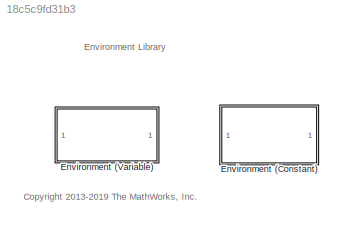
MODEL slx_18c5c9fd31b3
KIND library
CONFIG AbsTol = auto
CONFIG EnableMultiTasking = on
CONFIG FixedStep = auto
CONFIG MaxStep = auto
CONFIG MinStep = auto
CONFIG RelTol = 1e-3
CONFIG SampleTimeConstraint = Unconstrained
CONFIG SolverName = ode45
CONFIG StartTime = 0.0
CONFIG StopTime = 10.0
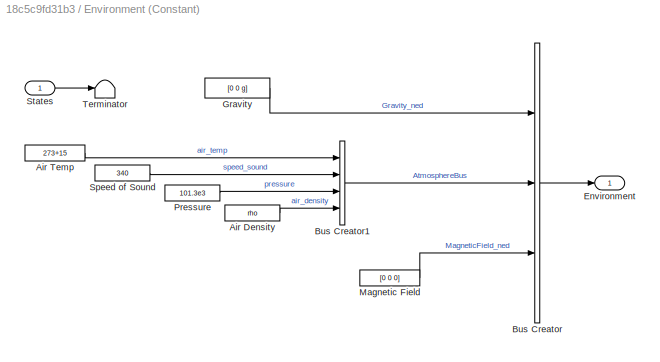
BLOCK [SubSystem] Environment (Constant)
  Ports = [1, 1]
  RequestExecContextInheritance = off
  TreatAsAtomicUnit = on
BLOCK [Constant] Environment (Constant)/Air Density
  Value = rho
BLOCK [Constant] Environment (Constant)/Air Temp
  Value = 273+15
BLOCK [BusCreator] Environment (Constant)/Bus Creator
  DisplayOption = bar
  InheritFromInputs = on
  Inputs = 3
  NonVirtualBus = on
  OutDataTypeStr = Bus: EnvironmentBus
  Ports = [3, 1]
BLOCK [BusCreator] Environment (Constant)/Bus Creator1
  DisplayOption = bar
  InheritFromInputs = on
  Inputs = 4
  NonVirtualBus = on
  OutDataTypeStr = Bus: AtmosphereBus
  Ports = [4, 1]
BLOCK [Outport] Environment (Constant)/Environment
  VectorParamsAs1DForOutWhenUnconnected = off
BLOCK [Constant] Environment (Constant)/Gravity
  Value = [0 0 g]
BLOCK [Constant] Environment (Constant)/Magnetic Field
  Value = [0 0 0]
BLOCK [Constant] Environment (Constant)/Pressure
  Value = 101.3e3
BLOCK [Constant] Environment (Constant)/Speed of Sound
  Value = 340
BLOCK [Inport] Environment (Constant)/States
  OutDataTypeStr = Bus: StatesBus
BLOCK [Terminator] Environment (Constant)/Terminator
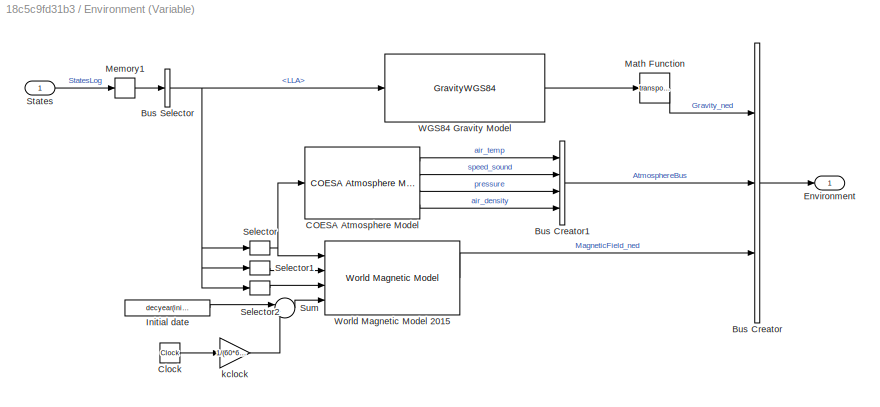
BLOCK [SubSystem] Environment (Variable)
  Ports = [1, 1]
  RequestExecContextInheritance = off
  TreatAsAtomicUnit = on
  VariantControl = VSS_ENVIRONMENT_VARIABLE
BLOCK [BusCreator] Environment (Variable)/Bus Creator
  DisplayOption = bar
  InheritFromInputs = on
  Inputs = 3
  NonVirtualBus = on
  OutDataTypeStr = Bus: EnvironmentBus
  Ports = [3, 1]
BLOCK [BusCreator] Environment (Variable)/Bus Creator1
  DisplayOption = bar
  InheritFromInputs = on
  Inputs = 4
  NonVirtualBus = on
  OutDataTypeStr = Bus: AtmosphereBus
  Ports = [4, 1]
BLOCK [BusSelector] Environment (Variable)/Bus Selector
  OutputSignals = LLA
  Ports = [1, 1]
BLOCK [Reference] Environment (Variable)/COESA Atmosphere Model  REF=aerolibatmos2/COESA Atmosphere Model
  Ports = [1, 4]
  SourceBlock = aerolibatmos2/COESA Atmosphere Model
  SourceProductBaseCode = AE
  SourceType = Atmosphere Model
BLOCK [Clock] Environment (Variable)/Clock
BLOCK [Outport] Environment (Variable)/Environment
  VectorParamsAs1DForOutWhenUnconnected = off
BLOCK [Constant] Environment (Variable)/Initial date
  Value = decyear(init.date)
BLOCK [Math] Environment (Variable)/Math Function
  Operator = transpose
  Ports = [1, 1]
  SignedPower = on
BLOCK [Memory] Environment (Variable)/Memory1
  InheritSampleTime = on
  InitialCondition = States
BLOCK [Selector] Environment (Variable)/Selector
  IndexOptions = Index vector (dialog)
  Indices = [3]
  InputPortWidth = 3
  OutputSizes = 1
  Ports = [1, 1]
BLOCK [Selector] Environment (Variable)/Selector1
  IndexOptions = Index vector (dialog)
  Indices = [1]
  InputPortWidth = 3
  OutputSizes = 1
  Ports = [1, 1]
BLOCK [Selector] Environment (Variable)/Selector2
  IndexOptions = Index vector (dialog)
  Indices = [2]
  InputPortWidth = 3
  OutputSizes = 1
  Ports = [1, 1]
BLOCK [Inport] Environment (Variable)/States
  OutDataTypeStr = Bus: StatesBus
BLOCK [Sum] Environment (Variable)/Sum
  Inputs = |++
  Ports = [2, 1]
BLOCK [GravityWGS84] Environment (Variable)/WGS84 Gravity Model  
  Ports = [1, 1]
  action = None
BLOCK [Reference] Environment (Variable)/World Magnetic Model 2015  REF=aerolibgravity2/World Magnetic Model
  Ports = [4, 1]
  SourceBlock = aerolibgravity2/World Magnetic Model
  SourceProductBaseCode = AE
  SourceType = WorldMagneticModel
BLOCK [Gain] Environment (Variable)/kclock
  Gain = 1/(60*60*24*(365 + leapyear(init.date(1))))
ANNOTATION (root): <copyright redacted>
ANNOTATION (root): Environment Library
LINE Environment (Constant)/Air Density:1 -> Environment (Constant)/Bus Creator1:4
LINE Environment (Constant)/Air Temp:1 -> Environment (Constant)/Bus Creator1:1
LINE Environment (Constant)/Bus Creator1:1 -> Environment (Constant)/Bus Creator:2
LINE Environment (Constant)/Bus Creator:1 -> Environment (Constant)/Environment:1
LINE Environment (Constant)/Gravity:1 -> Environment (Constant)/Bus Creator:1
LINE Environment (Constant)/Magnetic Field:1 -> Environment (Constant)/Bus Creator:3
LINE Environment (Constant)/Pressure:1 -> Environment (Constant)/Bus Creator1:3
LINE Environment (Constant)/Speed of Sound:1 -> Environment (Constant)/Bus Creator1:2
LINE Environment (Constant)/States:1 -> Environment (Constant)/Terminator:1
LINE Environment (Variable)/Bus Creator1:1 -> Environment (Variable)/Bus Creator:2
LINE Environment (Variable)/Bus Creator:1 -> Environment (Variable)/Environment:1
NET Environment (Variable)/Bus Selector:1 -> Environment (Variable)/Selector1:1, Environment (Variable)/Selector2:1, Environment (Variable)/Selector:1, Environment (Variable)/WGS84 Gravity Model  :1
LINE Environment (Variable)/COESA Atmosphere Model:1 -> Environment (Variable)/Bus Creator1:1
LINE Environment (Variable)/COESA Atmosphere Model:2 -> Environment (Variable)/Bus Creator1:2
LINE Environment (Variable)/COESA Atmosphere Model:3 -> Environment (Variable)/Bus Creator1:3
LINE Environment (Variable)/COESA Atmosphere Model:4 -> Environment (Variable)/Bus Creator1:4
LINE Environment (Variable)/Clock:1 -> Environment (Variable)/kclock:1
LINE Environment (Variable)/Initial date:1 -> Environment (Variable)/Sum:1
LINE Environment (Variable)/Math Function:1 -> Environment (Variable)/Bus Creator:1
LINE Environment (Variable)/Memory1:1 -> Environment (Variable)/Bus Selector:1
LINE Environment (Variable)/Selector1:1 -> Environment (Variable)/World Magnetic Model 2015:2
LINE Environment (Variable)/Selector2:1 -> Environment (Variable)/World Magnetic Model 2015:3
NET Environment (Variable)/Selector:1 -> Environment (Variable)/COESA Atmosphere Model:1, Environment (Variable)/World Magnetic Model 2015:1
LINE Environment (Variable)/States:1 -> Environment (Variable)/Memory1:1
LINE Environment (Variable)/Sum:1 -> Environment (Variable)/World Magnetic Model 2015:4
LINE Environment (Variable)/WGS84 Gravity Model  :1 -> Environment (Variable)/Math Function:1
LINE Environment (Variable)/World Magnetic Model 2015:1 -> Environment (Variable)/Bus Creator:3
LINE Environment (Variable)/kclock:1 -> Environment (Variable)/Sum:2
note: NET lines group one-source signal fan-out (src -> all destinations, sorted); 1:1 wires keep LINE
